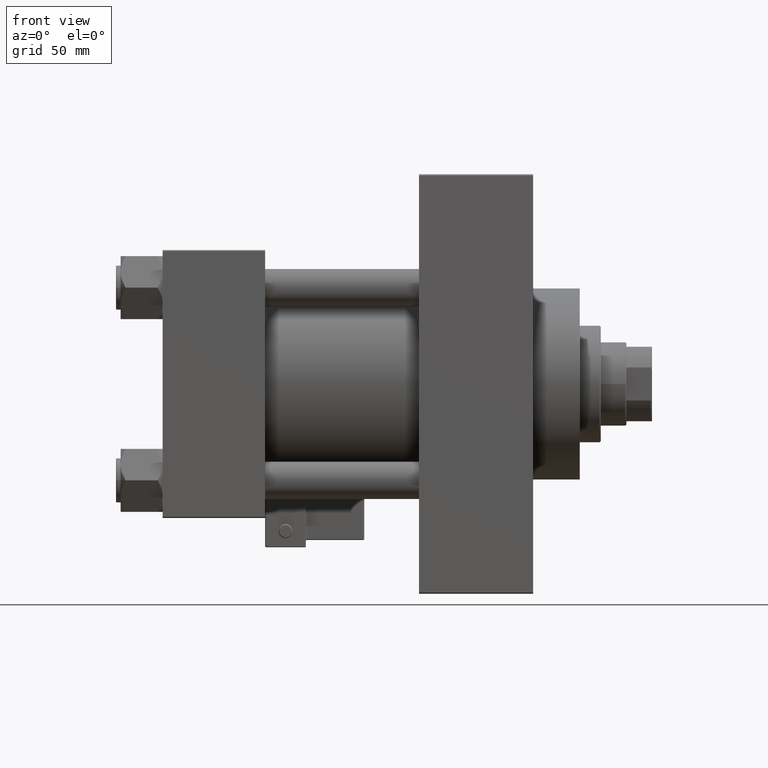
[diagram: clean part render]
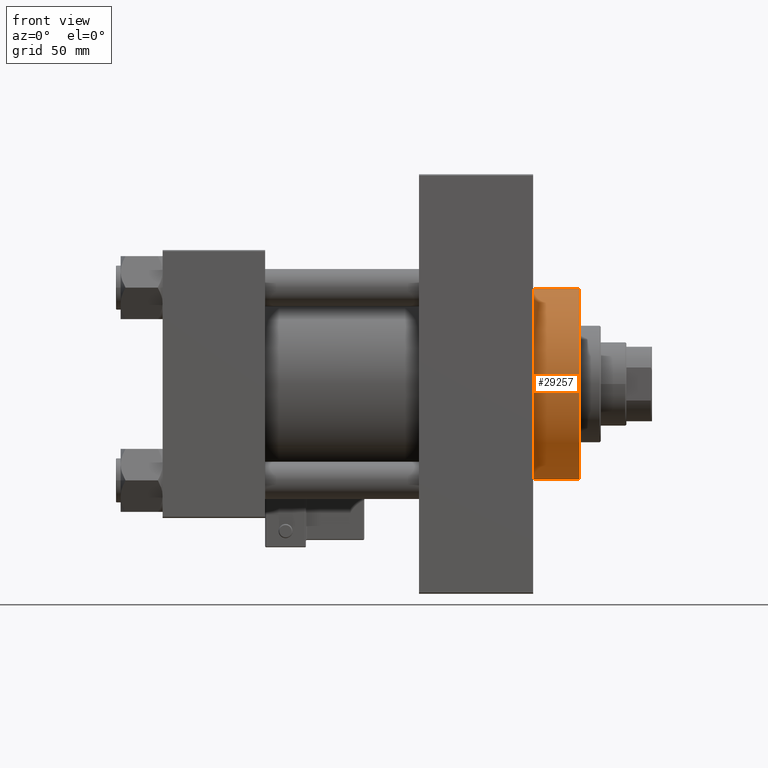
[diagram: same view with one face highlighted and labeled with its STEP entity id]
A machine part, front view. The second image highlights one B-rep face of the part: STEP entity #29257.
In plain terms, the highlighted cylindrical surface (partial cylindrical patch) has radius 41 mm, axis along (-1, -0, -0).
Its self-contained STEP definition (entity closure, byte-faithful):
#553 = ORIENTED_EDGE ( 'NONE', *, *, #6534, .T. ) ;
#1175 = DIRECTION ( 'NONE',  ( -1.000000000000000000, -0.000000000000000000, -0.000000000000000000 ) ) ;
#3392 = DIRECTION ( 'NONE',  ( -1.000000000000000000, -0.000000000000000000, -0.000000000000000000 ) ) ;
#4638 = EDGE_CURVE ( 'NONE', #28983, #21517, #26362, .T. ) ;
#6534 = EDGE_CURVE ( 'NONE', #40356, #21517, #36741, .T. ) ;
#8971 = CARTESIAN_POINT ( 'NONE',  ( 179.0000000000000000, 0.000000000000000000, 41.00000000000000000 ) ) ;
#12458 = ORIENTED_EDGE ( 'NONE', *, *, #15141, .F. ) ;
#12967 = ORIENTED_EDGE ( 'NONE', *, *, #4638, .F. ) ;
#13277 = FACE_OUTER_BOUND ( 'NONE', #36295, .T. ) ;
#14100 = VECTOR ( 'NONE', #3392, 1000.000000000000000 ) ;
#15074 = DIRECTION ( 'NONE',  ( 1.000000000000000000, 0.000000000000000000, 0.000000000000000000 ) ) ;
#15141 = EDGE_CURVE ( 'NONE', #42483, #28983, #44991, .T. ) ;
#16529 = EDGE_CURVE ( 'NONE', #42483, #40356, #43000, .T. ) ;
#16557 = DIRECTION ( 'NONE',  ( 0.000000000000000000, 0.000000000000000000, 1.000000000000000000 ) ) ;
#17421 = DIRECTION ( 'NONE',  ( 1.000000000000000000, 0.000000000000000000, 0.000000000000000000 ) ) ;
#19151 = ORIENTED_EDGE ( 'NONE', *, *, #16529, .T. ) ;
#19394 = CARTESIAN_POINT ( 'NONE',  ( 179.0000000000000000, 5.021051876504148963E-15, -41.00000000000000000 ) ) ;
#20358 = CYLINDRICAL_SURFACE ( 'NONE', #29711, 41.00000000000000000 ) ;
#21517 = VERTEX_POINT ( 'NONE', #45807 ) ;
#22564 = CARTESIAN_POINT ( 'NONE',  ( 179.0000000000000000, 5.021051876504148963E-15, -41.00000000000000000 ) ) ;
#24367 = DIRECTION ( 'NONE',  ( -1.000000000000000000, -0.000000000000000000, -0.000000000000000000 ) ) ;
#24382 = CARTESIAN_POINT ( 'NONE',  ( 159.0000000000000000, 0.000000000000000000, 41.00000000000000000 ) ) ;
#26362 = LINE ( 'NONE', #22564, #14100 ) ;
#28983 = VERTEX_POINT ( 'NONE', #19394 ) ;
#29257 = ADVANCED_FACE ( 'NONE', ( #13277 ), #20358, .T. ) ;
#29711 = AXIS2_PLACEMENT_3D ( 'NONE', #35726, #1175, #16557 ) ;
#34243 = CARTESIAN_POINT ( 'NONE',  ( 159.0000000000000000, 0.000000000000000000, 0.000000000000000000 ) ) ;
#34740 = DIRECTION ( 'NONE',  ( 0.000000000000000000, 0.000000000000000000, -1.000000000000000000 ) ) ;
#35726 = CARTESIAN_POINT ( 'NONE',  ( 179.0000000000000000, 0.000000000000000000, 0.000000000000000000 ) ) ;
#36295 = EDGE_LOOP ( 'NONE', ( #12967, #12458, #19151, #553 ) ) ;
#36741 = CIRCLE ( 'NONE', #43158, 41.00000000000000000 ) ;
#39341 = AXIS2_PLACEMENT_3D ( 'NONE', #40588, #17421, #47646 ) ;
#40356 = VERTEX_POINT ( 'NONE', #24382 ) ;
#40588 = CARTESIAN_POINT ( 'NONE',  ( 179.0000000000000000, 0.000000000000000000, 0.000000000000000000 ) ) ;
#42483 = VERTEX_POINT ( 'NONE', #45165 ) ;
#43000 = LINE ( 'NONE', #8971, #46604 ) ;
#43158 = AXIS2_PLACEMENT_3D ( 'NONE', #34243, #15074, #34740 ) ;
#44991 = CIRCLE ( 'NONE', #39341, 41.00000000000000000 ) ;
#45165 = CARTESIAN_POINT ( 'NONE',  ( 179.0000000000000000, 0.000000000000000000, 41.00000000000000000 ) ) ;
#45807 = CARTESIAN_POINT ( 'NONE',  ( 159.0000000000000000, 5.021051876504148963E-15, -41.00000000000000000 ) ) ;
#46604 = VECTOR ( 'NONE', #24367, 1000.000000000000000 ) ;
#47646 = DIRECTION ( 'NONE',  ( 0.000000000000000000, 0.000000000000000000, -1.000000000000000000 ) ) ;